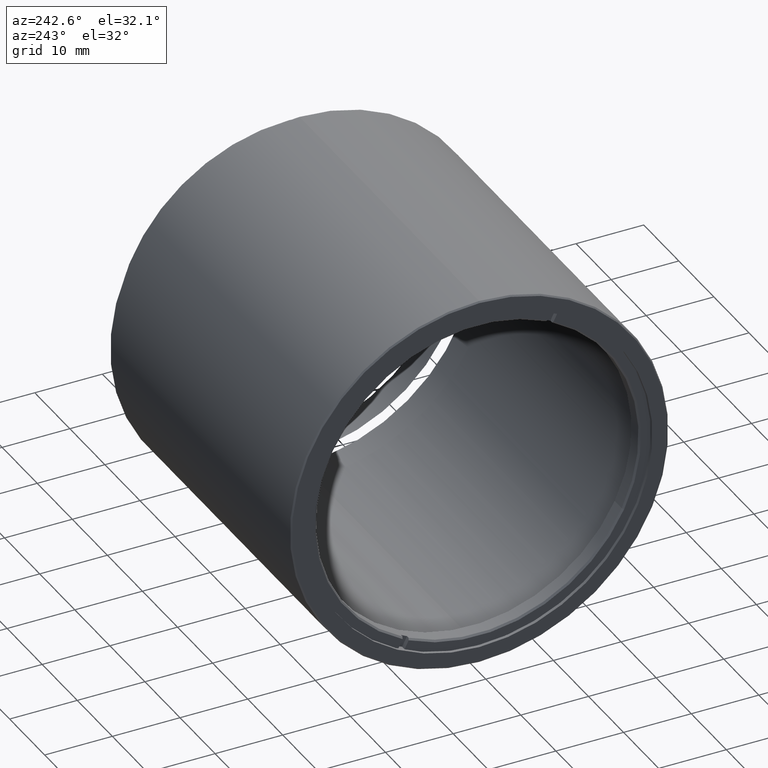
[diagram: clean part render]
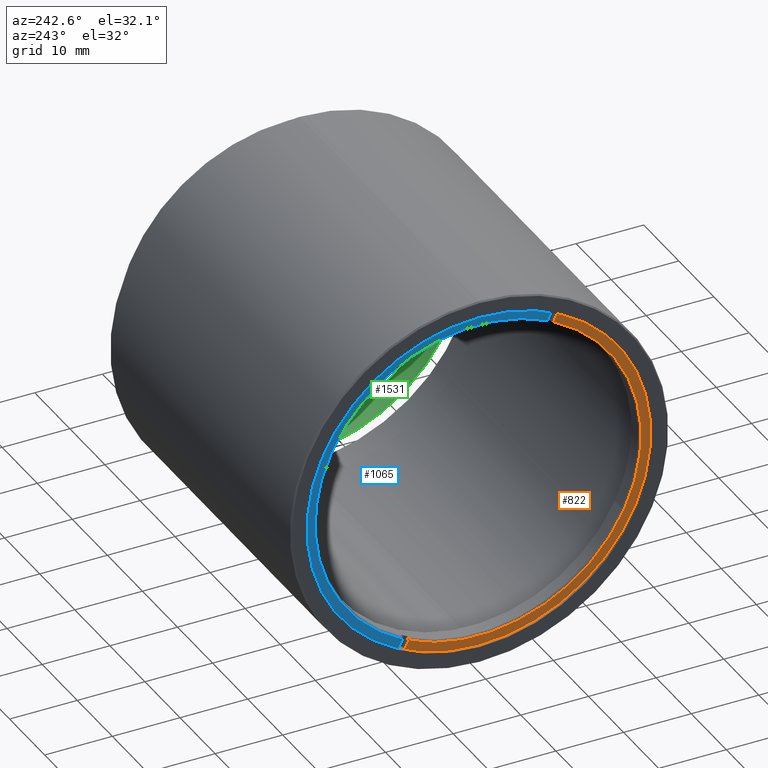
[diagram: same view with three faces highlighted in distinct colors, each labeled with its STEP entity id]
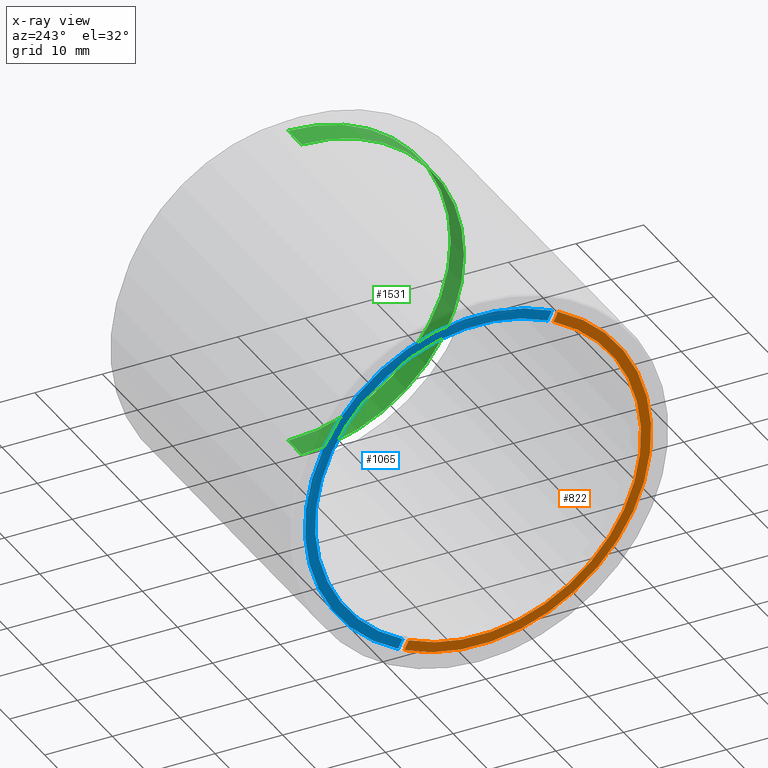
[diagram: x-ray of the same camera — body ghosted, the three highlighted faces saturated]
A machine part, auxiliary view with three faces highlighted in distinct colors.
The next image is the same camera in x-ray (body ghosted, the three faces saturated) — at least one of them is partly hidden behind the body in this view.
Their STEP definitions:

[orange] entity #822 — the highlighted planar face has unit normal (-1, -0, 0).
#53 = CIRCLE ( 'NONE', #342, 24.09450000000001424 ) ;
#149 = CARTESIAN_POINT ( 'NONE',  ( -47.59004185299394862, -20.10857142857141966, 3.354250471127029343E-15 ) ) ;
#157 = EDGE_CURVE ( 'NONE', #465, #541, #1278, .T. ) ;
#229 = VERTEX_POINT ( 'NONE', #1252 ) ;
#230 = ORIENTED_EDGE ( 'NONE', *, *, #157, .T. ) ;
#276 = AXIS2_PLACEMENT_3D ( 'NONE', #1508, #534, #1400 ) ;
#314 = VECTOR ( 'NONE', #1109, 999.9999999999998863 ) ;
#342 = AXIS2_PLACEMENT_3D ( 'NONE', #149, #422, #891 ) ;
#345 = ORIENTED_EDGE ( 'NONE', *, *, #1372, .T. ) ;
#365 = EDGE_CURVE ( 'NONE', #606, #465, #53, .T. ) ;
#395 = CARTESIAN_POINT ( 'NONE',  ( -47.59004185299394862, -20.10857142857141966, 3.354250471127029343E-15 ) ) ;
#422 = DIRECTION ( 'NONE',  ( 1.000000000000000000, -0.000000000000000000, -0.000000000000000000 ) ) ;
#434 = CARTESIAN_POINT ( 'NONE',  ( -47.59004185299394862, -9.851156522505760904, -21.80207260089788690 ) ) ;
#455 = LINE ( 'NONE', #1495, #1515 ) ;
#465 = VERTEX_POINT ( 'NONE', #786 ) ;
#534 = DIRECTION ( 'NONE',  ( -1.000000000000000000, -0.000000000000000000, 0.000000000000000000 ) ) ;
#541 = VERTEX_POINT ( 'NONE', #434 ) ;
#553 = FACE_OUTER_BOUND ( 'NONE', #1452, .T. ) ;
#597 = DIRECTION ( 'NONE',  ( 1.000000000000000000, -0.000000000000000000, -0.000000000000000000 ) ) ;
#606 = VERTEX_POINT ( 'NONE', #1422 ) ;
#728 = DIRECTION ( 'NONE',  ( 0.000000000000000000, -0.8958276688828354928, -0.4444016062796631306 ) ) ;
#748 = CARTESIAN_POINT ( 'NONE',  ( -47.59004185299394862, -9.184418954215763264, -23.14608655835861839 ) ) ;
#759 = EDGE_CURVE ( 'NONE', #606, #229, #455, .T. ) ;
#760 = DIRECTION ( 'NONE',  ( 0.000000000000000000, -0.4444016062796631861, 0.8958276688828356038 ) ) ;
#786 = CARTESIAN_POINT ( 'NONE',  ( -47.59004185299394862, -41.69309119646891304, -10.70763450250534810 ) ) ;
#822 = ADVANCED_FACE ( 'NONE', ( #553 ), #879, .T. ) ;
#879 = PLANE ( 'NONE',  #276 ) ;
#891 = DIRECTION ( 'NONE',  ( 0.000000000000000000, -0.8958276688828354928, -0.4444016062796631306 ) ) ;
#898 = ORIENTED_EDGE ( 'NONE', *, *, #365, .T. ) ;
#978 = DIRECTION ( 'NONE',  ( -1.000000000000000000, 0.000000000000000000, 0.000000000000000000 ) ) ;
#981 = CARTESIAN_POINT ( 'NONE',  ( -47.59004185299394862, -67.21865392237754122, 93.83970442955782687 ) ) ;
#1069 = LINE ( 'NONE', #981, #314 ) ;
#1109 = DIRECTION ( 'NONE',  ( 0.000000000000000000, -0.4444016062796631861, 0.8958276688828356038 ) ) ;
#1125 = DIRECTION ( 'NONE',  ( 0.000000000000000000, -0.8958276688828354928, -0.4444016062796632416 ) ) ;
#1225 = ORIENTED_EDGE ( 'NONE', *, *, #1451, .F. ) ;
#1229 = ORIENTED_EDGE ( 'NONE', *, *, #759, .F. ) ;
#1252 = CARTESIAN_POINT ( 'NONE',  ( -47.59004185299394862, -31.92855157181000081, 22.70168495207891723 ) ) ;
#1272 = AXIS2_PLACEMENT_3D ( 'NONE', #1579, #597, #728 ) ;
#1278 = CIRCLE ( 'NONE', #1272, 24.09450000000001424 ) ;
#1372 = EDGE_CURVE ( 'NONE', #1392, #229, #1511, .T. ) ;
#1392 = VERTEX_POINT ( 'NONE', #748 ) ;
#1400 = DIRECTION ( 'NONE',  ( 0.000000000000000000, -0.8958276688828354928, -0.4444016062796632416 ) ) ;
#1422 = CARTESIAN_POINT ( 'NONE',  ( -47.59004185299394862, -31.26181400352000139, 21.35767099461818574 ) ) ;
#1451 = EDGE_CURVE ( 'NONE', #1392, #541, #1069, .T. ) ;
#1452 = EDGE_LOOP ( 'NONE', ( #1225, #345, #1229, #898, #230 ) ) ;
#1495 = CARTESIAN_POINT ( 'NONE',  ( -47.59004185299394862, -67.21865392237754122, 93.83970442955782687 ) ) ;
#1508 = CARTESIAN_POINT ( 'NONE',  ( -47.59004185299394862, -20.10857142857141966, 3.354250471127029343E-15 ) ) ;
#1511 = CIRCLE ( 'NONE', #1570, 25.59450000000001424 ) ;
#1515 = VECTOR ( 'NONE', #760, 999.9999999999998863 ) ;
#1570 = AXIS2_PLACEMENT_3D ( 'NONE', #395, #978, #1125 ) ;
#1579 = CARTESIAN_POINT ( 'NONE',  ( -47.59004185299394862, -20.10857142857141966, 3.354250471127029343E-15 ) ) ;

[blue] entity #1065 — the highlighted planar face has unit normal (-1, -0, 0).
#16 = VERTEX_POINT ( 'NONE', #700 ) ;
#26 = CARTESIAN_POINT ( 'NONE',  ( -47.59004185299394862, -66.32282625349469640, 94.28410603583749605 ) ) ;
#112 = CARTESIAN_POINT ( 'NONE',  ( -47.59004185299394862, -31.03272390292716310, 23.14608655835857931 ) ) ;
#119 = DIRECTION ( 'NONE',  ( 0.000000000000000000, -0.8958276688828354928, -0.4444016062796632416 ) ) ;
#121 = DIRECTION ( 'NONE',  ( 0.000000000000000000, -0.8958276688828354928, -0.4444016062796632416 ) ) ;
#140 = CIRCLE ( 'NONE', #1493, 25.59450000000001424 ) ;
#174 = CARTESIAN_POINT ( 'NONE',  ( -47.59004185299394862, -30.36598633463716723, 21.80207260089784427 ) ) ;
#243 = CARTESIAN_POINT ( 'NONE',  ( -47.59004185299394862, -20.10857142857141966, 3.354250471127029343E-15 ) ) ;
#355 = DIRECTION ( 'NONE',  ( 0.000000000000000000, -0.8958276688828354928, -0.4444016062796631306 ) ) ;
#369 = ORIENTED_EDGE ( 'NONE', *, *, #954, .T. ) ;
#401 = LINE ( 'NONE', #911, #1241 ) ;
#641 = ORIENTED_EDGE ( 'NONE', *, *, #1365, .T. ) ;
#645 = DIRECTION ( 'NONE',  ( 0.000000000000000000, 0.4444016062796631861, -0.8958276688828356038 ) ) ;
#669 = LINE ( 'NONE', #26, #1000 ) ;
#700 = CARTESIAN_POINT ( 'NONE',  ( -47.59004185299394862, -8.955328853622924967, -21.35767099461822482 ) ) ;
#756 = VERTEX_POINT ( 'NONE', #112 ) ;
#812 = ORIENTED_EDGE ( 'NONE', *, *, #889, .F. ) ;
#877 = VERTEX_POINT ( 'NONE', #1512 ) ;
#889 = EDGE_CURVE ( 'NONE', #756, #1169, #401, .T. ) ;
#911 = CARTESIAN_POINT ( 'NONE',  ( -47.59004185299394862, -66.32282625349469640, 94.28410603583749605 ) ) ;
#939 = CIRCLE ( 'NONE', #1166, 24.09450000000001424 ) ;
#946 = FACE_OUTER_BOUND ( 'NONE', #1189, .T. ) ;
#954 = EDGE_CURVE ( 'NONE', #756, #877, #140, .T. ) ;
#963 = CARTESIAN_POINT ( 'NONE',  ( -47.59004185299394862, -20.10857142857141966, 3.354250471127029343E-15 ) ) ;
#1000 = VECTOR ( 'NONE', #1236, 999.9999999999998863 ) ;
#1065 = ADVANCED_FACE ( 'NONE', ( #946 ), #1142, .T. ) ;
#1091 = DIRECTION ( 'NONE',  ( -1.000000000000000000, 0.000000000000000000, 0.000000000000000000 ) ) ;
#1142 = PLANE ( 'NONE',  #1557 ) ;
#1150 = ORIENTED_EDGE ( 'NONE', *, *, #1417, .F. ) ;
#1166 = AXIS2_PLACEMENT_3D ( 'NONE', #963, #1211, #355 ) ;
#1169 = VERTEX_POINT ( 'NONE', #174 ) ;
#1189 = EDGE_LOOP ( 'NONE', ( #812, #369, #1150, #641 ) ) ;
#1211 = DIRECTION ( 'NONE',  ( 1.000000000000000000, -0.000000000000000000, -0.000000000000000000 ) ) ;
#1236 = DIRECTION ( 'NONE',  ( 0.000000000000000000, 0.4444016062796631861, -0.8958276688828356038 ) ) ;
#1241 = VECTOR ( 'NONE', #645, 999.9999999999998863 ) ;
#1349 = DIRECTION ( 'NONE',  ( -1.000000000000000000, -0.000000000000000000, 0.000000000000000000 ) ) ;
#1365 = EDGE_CURVE ( 'NONE', #16, #1169, #939, .T. ) ;
#1417 = EDGE_CURVE ( 'NONE', #16, #877, #669, .T. ) ;
#1441 = CARTESIAN_POINT ( 'NONE',  ( -47.59004185299394862, -20.10857142857141966, 3.354250471127029343E-15 ) ) ;
#1493 = AXIS2_PLACEMENT_3D ( 'NONE', #1441, #1091, #119 ) ;
#1512 = CARTESIAN_POINT ( 'NONE',  ( -47.59004185299394862, -8.288591285332927328, -22.70168495207895631 ) ) ;
#1557 = AXIS2_PLACEMENT_3D ( 'NONE', #243, #1349, #121 ) ;

[green] entity #1531 — the highlighted cylindrical surface (partial cylindrical patch) has radius 24 mm, axis along (1, -0, -0).
#5 = CARTESIAN_POINT ( 'NONE',  ( 2.725999999999982659, -20.10857142857141611, 24.00000000000000355 ) ) ;
#87 = VECTOR ( 'NONE', #1044, 1000.000000000000000 ) ;
#104 = CARTESIAN_POINT ( 'NONE',  ( 6.525999999999982926, -20.10857142857141611, 24.00000000000000355 ) ) ;
#191 = DIRECTION ( 'NONE',  ( 0.000000000000000000, 0.000000000000000000, -1.000000000000000000 ) ) ;
#215 = DIRECTION ( 'NONE',  ( 0.000000000000000000, 0.000000000000000000, -1.000000000000000000 ) ) ;
#247 = LINE ( 'NONE', #619, #850 ) ;
#249 = CARTESIAN_POINT ( 'NONE',  ( 2.725999999999982659, -20.10857142857141966, -24.00000000000000355 ) ) ;
#292 = EDGE_CURVE ( 'NONE', #1473, #1321, #247, .T. ) ;
#331 = CARTESIAN_POINT ( 'NONE',  ( 6.525999999999982926, -20.10857142857141966, 0.000000000000000000 ) ) ;
#352 = ORIENTED_EDGE ( 'NONE', *, *, #928, .T. ) ;
#446 = EDGE_CURVE ( 'NONE', #1473, #1410, #1256, .T. ) ;
#526 = DIRECTION ( 'NONE',  ( 0.000000000000000000, 0.000000000000000000, -1.000000000000000000 ) ) ;
#619 = CARTESIAN_POINT ( 'NONE',  ( -48.07400000000001228, -20.10857142857141611, 24.00000000000000355 ) ) ;
#667 = CARTESIAN_POINT ( 'NONE',  ( 2.725999999999982659, -20.10857142857141966, 0.000000000000000000 ) ) ;
#752 = DIRECTION ( 'NONE',  ( 1.000000000000000000, -0.000000000000000000, -0.000000000000000000 ) ) ;
#767 = CARTESIAN_POINT ( 'NONE',  ( -48.07400000000001228, -20.10857142857141966, -24.00000000000000355 ) ) ;
#850 = VECTOR ( 'NONE', #1235, 1000.000000000000000 ) ;
#864 = LINE ( 'NONE', #767, #87 ) ;
#916 = VERTEX_POINT ( 'NONE', #1543 ) ;
#928 = EDGE_CURVE ( 'NONE', #1321, #916, #1405, .T. ) ;
#938 = CYLINDRICAL_SURFACE ( 'NONE', #1209, 24.00000000000000355 ) ;
#943 = DIRECTION ( 'NONE',  ( 1.000000000000000000, 0.000000000000000000, 0.000000000000000000 ) ) ;
#955 = ORIENTED_EDGE ( 'NONE', *, *, #446, .F. ) ;
#1044 = DIRECTION ( 'NONE',  ( 1.000000000000000000, -0.000000000000000000, -0.000000000000000000 ) ) ;
#1083 = FACE_OUTER_BOUND ( 'NONE', #1340, .T. ) ;
#1175 = EDGE_CURVE ( 'NONE', #1410, #916, #864, .T. ) ;
#1187 = ORIENTED_EDGE ( 'NONE', *, *, #292, .T. ) ;
#1209 = AXIS2_PLACEMENT_3D ( 'NONE', #1510, #752, #526 ) ;
#1235 = DIRECTION ( 'NONE',  ( 1.000000000000000000, -0.000000000000000000, -0.000000000000000000 ) ) ;
#1256 = CIRCLE ( 'NONE', #1348, 24.00000000000000355 ) ;
#1313 = AXIS2_PLACEMENT_3D ( 'NONE', #331, #943, #215 ) ;
#1321 = VERTEX_POINT ( 'NONE', #104 ) ;
#1340 = EDGE_LOOP ( 'NONE', ( #955, #1187, #352, #1501 ) ) ;
#1348 = AXIS2_PLACEMENT_3D ( 'NONE', #667, #1533, #191 ) ;
#1405 = CIRCLE ( 'NONE', #1313, 24.00000000000000355 ) ;
#1410 = VERTEX_POINT ( 'NONE', #249 ) ;
#1473 = VERTEX_POINT ( 'NONE', #5 ) ;
#1501 = ORIENTED_EDGE ( 'NONE', *, *, #1175, .F. ) ;
#1510 = CARTESIAN_POINT ( 'NONE',  ( -48.07400000000001228, -20.10857142857141966, 0.000000000000000000 ) ) ;
#1531 = ADVANCED_FACE ( 'NONE', ( #1083 ), #938, .F. ) ;
#1533 = DIRECTION ( 'NONE',  ( 1.000000000000000000, 0.000000000000000000, 0.000000000000000000 ) ) ;
#1543 = CARTESIAN_POINT ( 'NONE',  ( 6.525999999999982926, -20.10857142857141966, -24.00000000000000355 ) ) ;